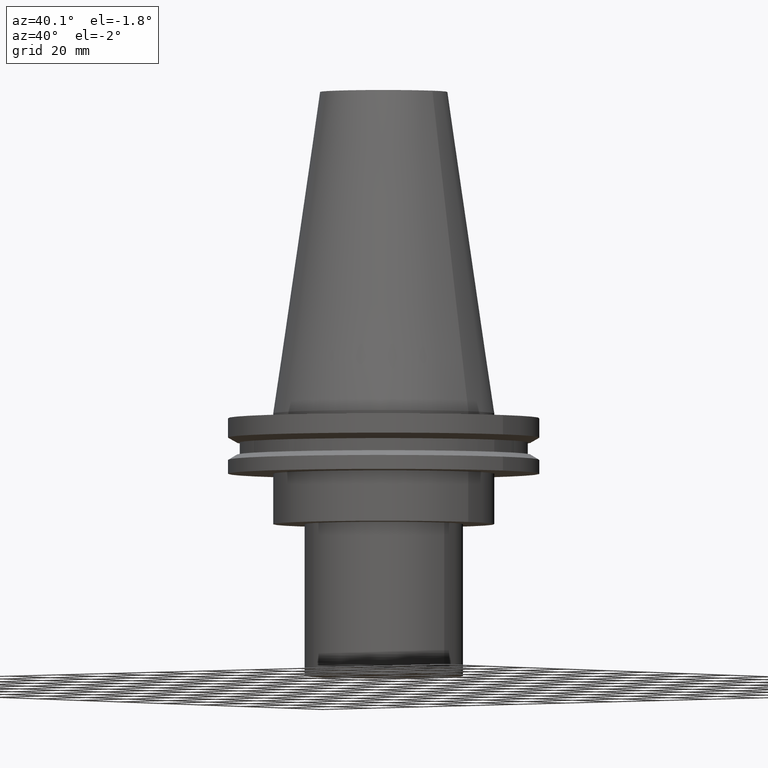
[diagram: clean part render]
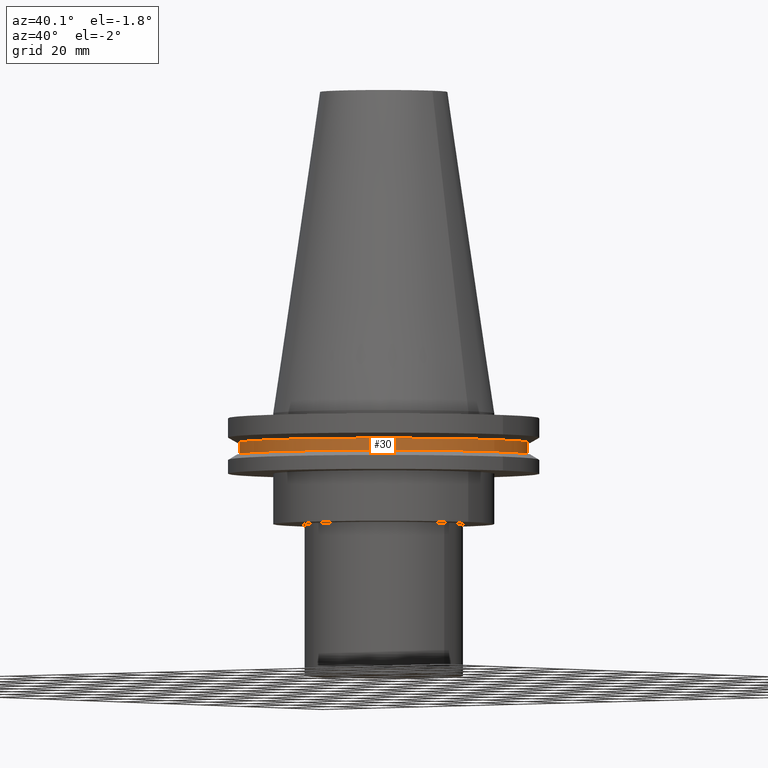
[diagram: same view with one face highlighted and labeled with its STEP entity id]
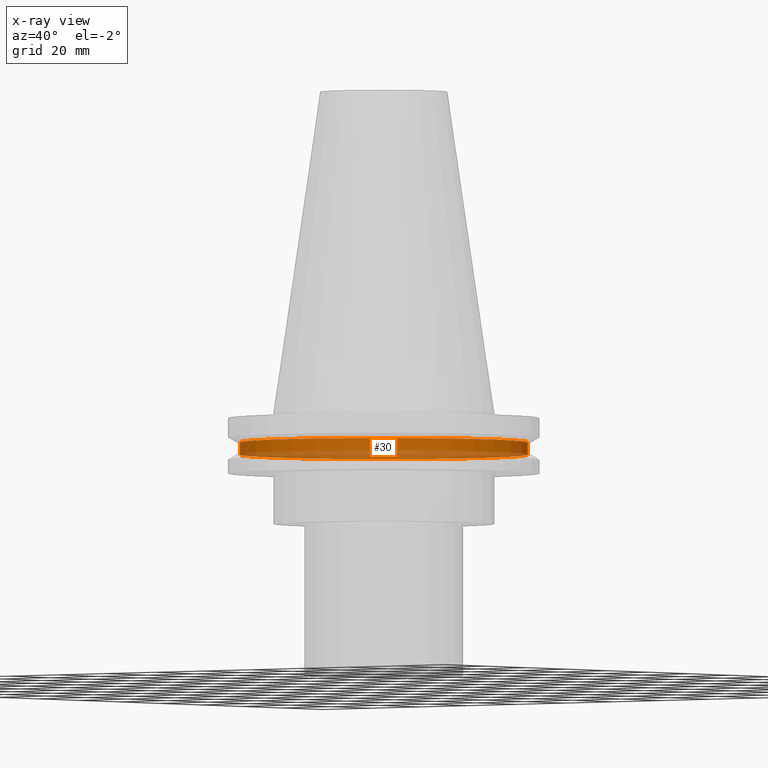
[diagram: x-ray of the same camera — body ghosted, the highlighted face saturated]
A machine part, auxiliary view. The second image highlights one B-rep face of the part: STEP entity #30.
The next image is the same camera in x-ray: the body ghosted, the highlighted face saturated — about 37% of this face is hidden behind the body in this view.
In plain terms, the highlighted cylindrical surface (bore or boss wall) has radius 45.645 mm, axis along (-0, -0, 1).
Its self-contained STEP definition (entity closure, byte-faithful):
#30 = ADVANCED_FACE ( 'NONE', ( #122, #332 ), #60, .T. ) ;
#60 = CYLINDRICAL_SURFACE ( 'NONE', #69, 45.64500000000000313 ) ;
#69 = AXIS2_PLACEMENT_3D ( 'NONE', #184, #302, #280 ) ;
#72 = CARTESIAN_POINT ( 'NONE',  ( 45.64500000000000313, 0.000000000000000000, -9.204999999999991189 ) ) ;
#94 = DIRECTION ( 'NONE',  ( 1.000000000000000000, 0.000000000000000000, 0.000000000000000000 ) ) ;
#99 = VERTEX_POINT ( 'NONE', #163 ) ;
#122 = FACE_OUTER_BOUND ( 'NONE', #272, .T. ) ;
#129 = CIRCLE ( 'NONE', #144, 45.64500000000000313 ) ;
#133 = CARTESIAN_POINT ( 'NONE',  ( 0.000000000000000000, 0.000000000000000000, -9.204999999999991189 ) ) ;
#144 = AXIS2_PLACEMENT_3D ( 'NONE', #269, #234, #327 ) ;
#156 = EDGE_LOOP ( 'NONE', ( #352 ) ) ;
#163 = CARTESIAN_POINT ( 'NONE',  ( 45.64500000000000313, 0.000000000000000000, -13.05499999999999794 ) ) ;
#184 = CARTESIAN_POINT ( 'NONE',  ( 0.000000000000000000, 0.000000000000000000, 101.5999999999999943 ) ) ;
#211 = AXIS2_PLACEMENT_3D ( 'NONE', #133, #254, #94 ) ;
#213 = EDGE_CURVE ( 'NONE', #249, #249, #221, .T. ) ;
#221 = CIRCLE ( 'NONE', #211, 45.64500000000000313 ) ;
#234 = DIRECTION ( 'NONE',  ( -0.000000000000000000, -0.000000000000000000, 1.000000000000000000 ) ) ;
#249 = VERTEX_POINT ( 'NONE', #72 ) ;
#254 = DIRECTION ( 'NONE',  ( -0.000000000000000000, -0.000000000000000000, 1.000000000000000000 ) ) ;
#269 = CARTESIAN_POINT ( 'NONE',  ( 0.000000000000000000, 0.000000000000000000, -13.05499999999999794 ) ) ;
#272 = EDGE_LOOP ( 'NONE', ( #354 ) ) ;
#280 = DIRECTION ( 'NONE',  ( 1.000000000000000000, 0.000000000000000000, 0.000000000000000000 ) ) ;
#302 = DIRECTION ( 'NONE',  ( -0.000000000000000000, -0.000000000000000000, 1.000000000000000000 ) ) ;
#327 = DIRECTION ( 'NONE',  ( 1.000000000000000000, 0.000000000000000000, 0.000000000000000000 ) ) ;
#332 = FACE_OUTER_BOUND ( 'NONE', #156, .T. ) ;
#352 = ORIENTED_EDGE ( 'NONE', *, *, #363, .T. ) ;
#354 = ORIENTED_EDGE ( 'NONE', *, *, #213, .F. ) ;
#363 = EDGE_CURVE ( 'NONE', #99, #99, #129, .T. ) ;